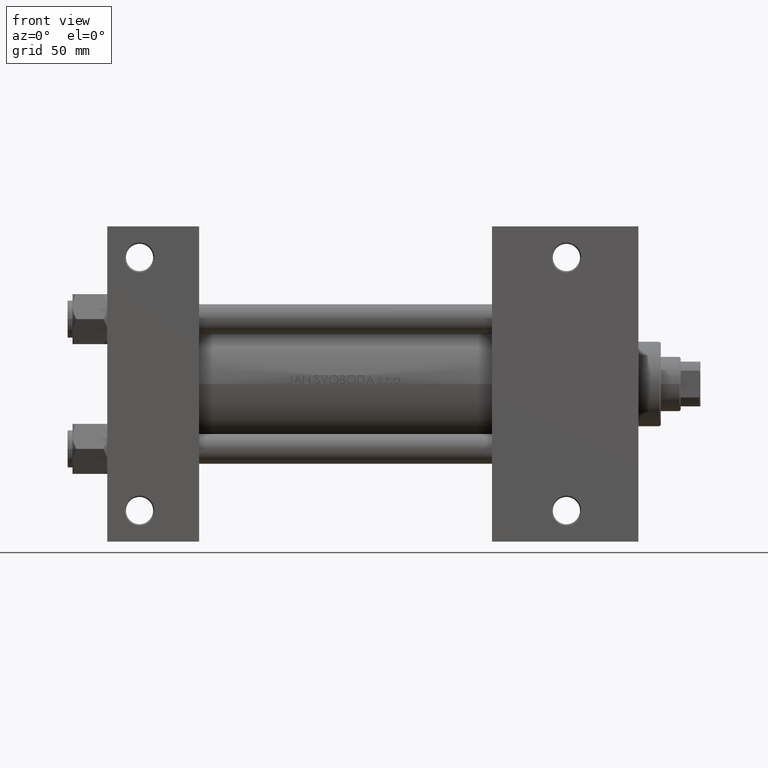
[diagram: clean part render]
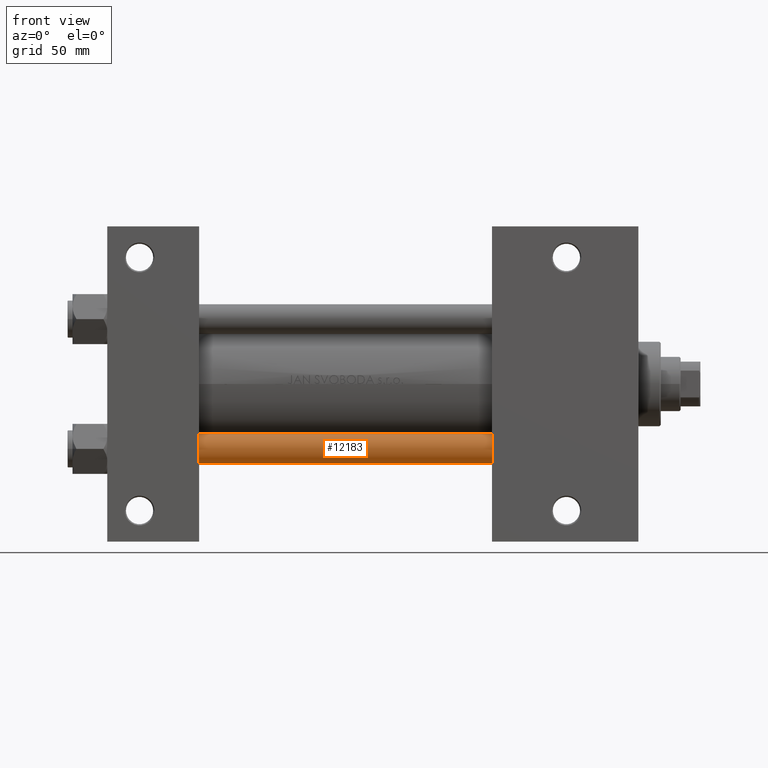
[diagram: same view with one face highlighted and labeled with its STEP entity id]
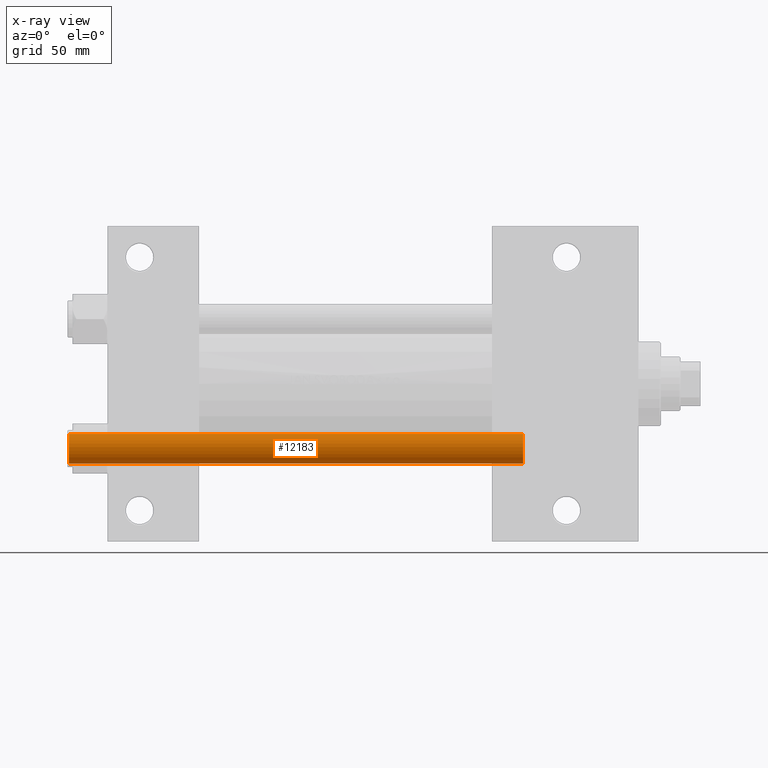
[diagram: x-ray of the same camera — body ghosted, the highlighted face saturated]
A machine part, front view. The second image highlights one B-rep face of the part: STEP entity #12183.
The next image is the same camera in x-ray: the body ghosted, the highlighted face saturated — about 0% of this face is hidden behind the body in this view.
In plain terms, the highlighted cylindrical surface (edge-blend (fillet) strip) has radius 6 mm, axis along (-1, 0, 0).
Its self-contained STEP definition (entity closure, byte-faithful):
#1007 = AXIS2_PLACEMENT_3D ( 'NONE', #37719, #45688, #26736 ) ;
#1352 = FACE_OUTER_BOUND ( 'NONE', #32679, .T. ) ;
#1827 = CIRCLE ( 'NONE', #1007, 6.000000000000000888 ) ;
#5168 = DIRECTION ( 'NONE',  ( -0.000000000000000000, -0.000000000000000000, 1.000000000000000000 ) ) ;
#9361 = CARTESIAN_POINT ( 'NONE',  ( 6.000000000000000888, 7.347880794884120722E-16, 183.5000000000000000 ) ) ;
#9429 = ORIENTED_EDGE ( 'NONE', *, *, #47455, .T. ) ;
#9559 = DIRECTION ( 'NONE',  ( -1.000000000000000000, 0.000000000000000000, 0.000000000000000000 ) ) ;
#10407 = ORIENTED_EDGE ( 'NONE', *, *, #17831, .T. ) ;
#12183 = ADVANCED_FACE ( 'NONE', ( #1352 ), #24250, .T. ) ;
#12669 = VERTEX_POINT ( 'NONE', #30874 ) ;
#15493 = DIRECTION ( 'NONE',  ( -0.000000000000000000, -0.000000000000000000, -1.000000000000000000 ) ) ;
#16130 = CARTESIAN_POINT ( 'NONE',  ( 0.000000000000000000, 0.000000000000000000, 0.5000000000000004441 ) ) ;
#16954 = ORIENTED_EDGE ( 'NONE', *, *, #48403, .F. ) ;
#17831 = EDGE_CURVE ( 'NONE', #37601, #12669, #37031, .T. ) ;
#18546 = VECTOR ( 'NONE', #46976, 1000.000000000000000 ) ;
#21973 = EDGE_CURVE ( 'NONE', #26675, #37601, #42147, .T. ) ;
#24250 = CYLINDRICAL_SURFACE ( 'NONE', #45975, 6.000000000000000888 ) ;
#24442 = VECTOR ( 'NONE', #15493, 1000.000000000000000 ) ;
#24490 = CARTESIAN_POINT ( 'NONE',  ( 0.000000000000000000, 0.000000000000000000, 184.0000000000000000 ) ) ;
#26467 = VERTEX_POINT ( 'NONE', #28068 ) ;
#26675 = VERTEX_POINT ( 'NONE', #9361 ) ;
#26736 = DIRECTION ( 'NONE',  ( 1.000000000000000000, 0.000000000000000000, 0.000000000000000000 ) ) ;
#28068 = CARTESIAN_POINT ( 'NONE',  ( -6.000000000000000888, 0.000000000000000000, 183.5000000000000000 ) ) ;
#30789 = CARTESIAN_POINT ( 'NONE',  ( -6.000000000000000888, 0.000000000000000000, 184.0000000000000000 ) ) ;
#30874 = CARTESIAN_POINT ( 'NONE',  ( -6.000000000000000888, 0.000000000000000000, 0.5000000000000004441 ) ) ;
#31761 = LINE ( 'NONE', #30789, #18546 ) ;
#32679 = EDGE_LOOP ( 'NONE', ( #9429, #34518, #10407, #16954 ) ) ;
#34518 = ORIENTED_EDGE ( 'NONE', *, *, #21973, .T. ) ;
#37031 = CIRCLE ( 'NONE', #47388, 6.000000000000000888 ) ;
#37601 = VERTEX_POINT ( 'NONE', #42957 ) ;
#37719 = CARTESIAN_POINT ( 'NONE',  ( 0.000000000000000000, 0.000000000000000000, 183.5000000000000000 ) ) ;
#41661 = CARTESIAN_POINT ( 'NONE',  ( 6.000000000000000888, 7.347880794884120722E-16, 184.0000000000000000 ) ) ;
#42147 = LINE ( 'NONE', #41661, #24442 ) ;
#42957 = CARTESIAN_POINT ( 'NONE',  ( 6.000000000000000888, 7.347880794884120722E-16, 0.5000000000000004441 ) ) ;
#43672 = DIRECTION ( 'NONE',  ( -0.000000000000000000, -0.000000000000000000, -1.000000000000000000 ) ) ;
#45688 = DIRECTION ( 'NONE',  ( 0.000000000000000000, 0.000000000000000000, -1.000000000000000000 ) ) ;
#45975 = AXIS2_PLACEMENT_3D ( 'NONE', #24490, #43672, #9559 ) ;
#46522 = DIRECTION ( 'NONE',  ( 1.000000000000000000, 0.000000000000000000, 0.000000000000000000 ) ) ;
#46976 = DIRECTION ( 'NONE',  ( -0.000000000000000000, -0.000000000000000000, -1.000000000000000000 ) ) ;
#47388 = AXIS2_PLACEMENT_3D ( 'NONE', #16130, #5168, #46522 ) ;
#47455 = EDGE_CURVE ( 'NONE', #26467, #26675, #1827, .T. ) ;
#48403 = EDGE_CURVE ( 'NONE', #26467, #12669, #31761, .T. ) ;